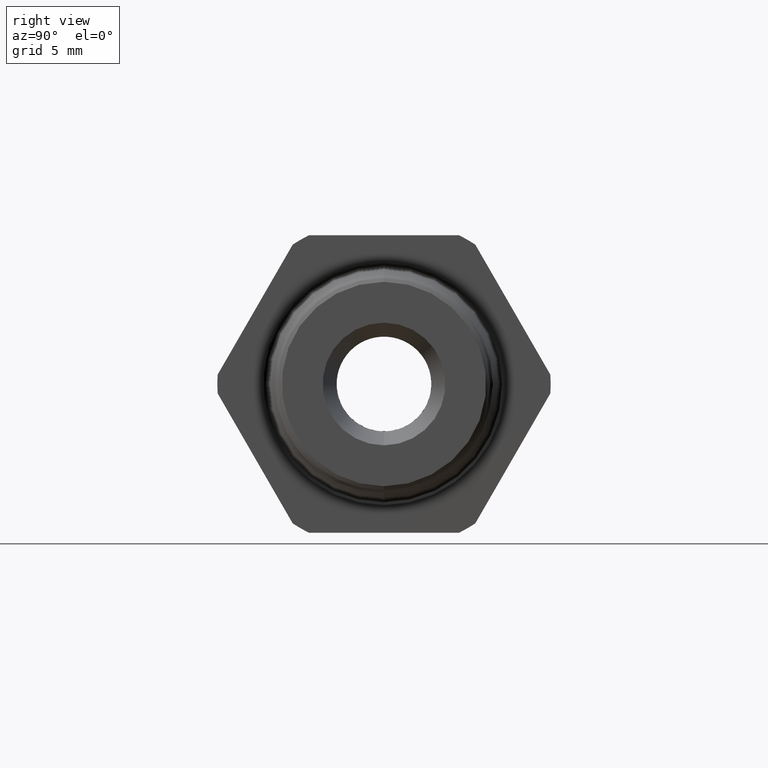
[diagram: clean part render]
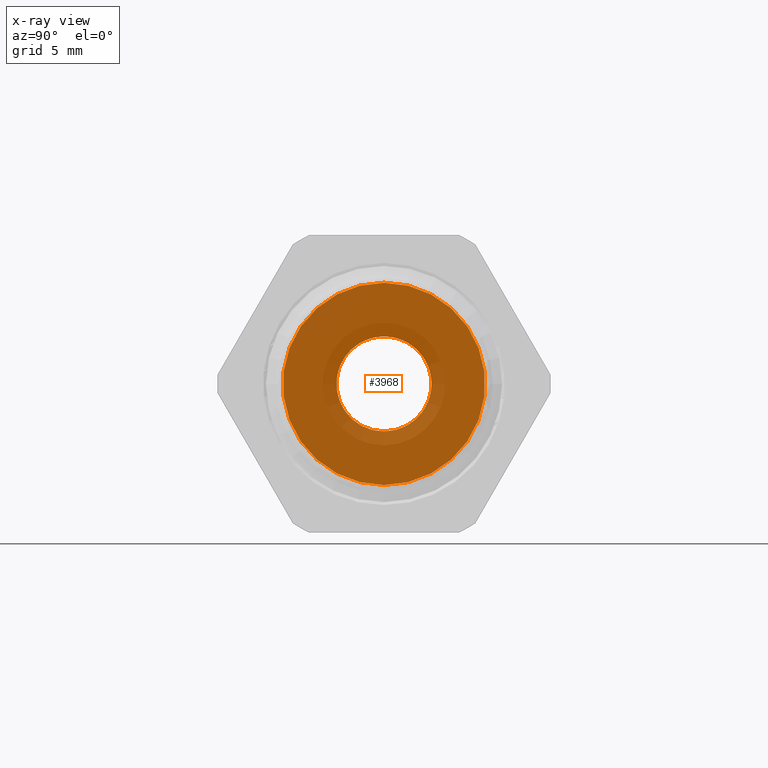
[diagram: x-ray — body ghosted, one internal face saturated and labeled with its STEP entity id]
A machine part, right view, then the same camera in x-ray: the body is ghosted and one INTERNAL B-rep face — a face not visible from any outside direction — is saturated and labeled: STEP entity #3968.
In plain terms, the highlighted planar face has unit normal (1, 0, 0).
Its self-contained STEP definition (entity closure, byte-faithful):
#15 = EDGE_CURVE ( 'NONE', #28, #21, #1956, .T. ) ;
#21 = VERTEX_POINT ( 'NONE', #1977 ) ;
#25 = VERTEX_POINT ( 'NONE', #1980 ) ;
#28 = VERTEX_POINT ( 'NONE', #2011 ) ;
#68 = EDGE_CURVE ( 'NONE', #25, #69, #2065, .T. ) ;
#69 = VERTEX_POINT ( 'NONE', #2071 ) ;
#866 = ORIENTED_EDGE ( 'NONE', *, *, #68, .F. ) ;
#867 = EDGE_LOOP ( 'NONE', ( #868, #3757 ) ) ;
#868 = ORIENTED_EDGE ( 'NONE', *, *, #3715, .T. ) ;
#1123 = DIRECTION ( 'NONE',  ( 0.0000000000000000000, 0.0000000000000000000, 1.000000000000000000 ) ) ;
#1124 = DIRECTION ( 'NONE',  ( -1.000000000000000000, -0.0000000000000000000, -0.0000000000000000000 ) ) ;
#1125 = CARTESIAN_POINT ( 'NONE',  ( -0.6937499999999999800, 0.0000000000000000000, 0.0000000000000000000 ) ) ;
#1126 = AXIS2_PLACEMENT_3D ( 'NONE', #1125, #1124, #1123 ) ;
#1127 = CIRCLE ( 'NONE', #1126, 0.2550000000000000000 ) ;
#1471 = DIRECTION ( 'NONE',  ( 0.0000000000000000000, 0.0000000000000000000, 1.000000000000000000 ) ) ;
#1472 = DIRECTION ( 'NONE',  ( -1.000000000000000000, -0.0000000000000000000, -0.0000000000000000000 ) ) ;
#1473 = CARTESIAN_POINT ( 'NONE',  ( -0.6937499999999999800, 0.0000000000000000000, 0.0000000000000000000 ) ) ;
#1474 = AXIS2_PLACEMENT_3D ( 'NONE', #1473, #1472, #1471 ) ;
#1475 = CIRCLE ( 'NONE', #1474, 0.1199999999999999800 ) ;
#1482 = DIRECTION ( 'NONE',  ( 0.0000000000000000000, 0.0000000000000000000, -1.000000000000000000 ) ) ;
#1483 = DIRECTION ( 'NONE',  ( 1.000000000000000000, 0.0000000000000000000, 0.0000000000000000000 ) ) ;
#1484 = CARTESIAN_POINT ( 'NONE',  ( -0.6937499999999999800, 0.2550000000000000000, 0.0000000000000000000 ) ) ;
#1485 = AXIS2_PLACEMENT_3D ( 'NONE', #1484, #1483, #1482 ) ;
#1488 = PLANE ( 'NONE',  #1485 ) ;
#1489 = FACE_OUTER_BOUND ( 'NONE', #867, .T. ) ;
#1490 = FACE_BOUND ( 'NONE', #3723, .T. ) ;
#1955 = AXIS2_PLACEMENT_3D ( 'NONE', #1960, #1968, #1967 ) ;
#1956 = CIRCLE ( 'NONE', #1955, 0.2550000000000000000 ) ;
#1960 = CARTESIAN_POINT ( 'NONE',  ( -0.6937499999999999800, 0.0000000000000000000, 0.0000000000000000000 ) ) ;
#1967 = DIRECTION ( 'NONE',  ( 0.0000000000000000000, 0.0000000000000000000, 1.000000000000000000 ) ) ;
#1968 = DIRECTION ( 'NONE',  ( -1.000000000000000000, -0.0000000000000000000, -0.0000000000000000000 ) ) ;
#1977 = CARTESIAN_POINT ( 'NONE',  ( -0.6937499999999999800, 0.0000000000000000000, 0.2550000000000000000 ) ) ;
#1980 = CARTESIAN_POINT ( 'NONE',  ( -0.6937499999999999800, 1.469527624586852600E-017, -0.1199999999999999800 ) ) ;
#2011 = CARTESIAN_POINT ( 'NONE',  ( -0.6937499999999999800, 3.122746202247062400E-017, -0.2550000000000000000 ) ) ;
#2065 = CIRCLE ( 'NONE', #2066, 0.1199999999999999800 ) ;
#2066 = AXIS2_PLACEMENT_3D ( 'NONE', #2074, #2067, #2068 ) ;
#2067 = DIRECTION ( 'NONE',  ( -1.000000000000000000, -0.0000000000000000000, -0.0000000000000000000 ) ) ;
#2068 = DIRECTION ( 'NONE',  ( 0.0000000000000000000, 0.0000000000000000000, 1.000000000000000000 ) ) ;
#2071 = CARTESIAN_POINT ( 'NONE',  ( -0.6937499999999999800, 0.0000000000000000000, 0.1199999999999999800 ) ) ;
#2074 = CARTESIAN_POINT ( 'NONE',  ( -0.6937499999999999800, 0.0000000000000000000, 0.0000000000000000000 ) ) ;
#3715 = EDGE_CURVE ( 'NONE', #21, #28, #1127, .T. ) ;
#3723 = EDGE_LOOP ( 'NONE', ( #3967, #866 ) ) ;
#3757 = ORIENTED_EDGE ( 'NONE', *, *, #15, .T. ) ;
#3941 = EDGE_CURVE ( 'NONE', #69, #25, #1475, .T. ) ;
#3967 = ORIENTED_EDGE ( 'NONE', *, *, #3941, .F. ) ;
#3968 = ADVANCED_FACE ( 'NONE', ( #1490, #1489 ), #1488, .F. ) ;